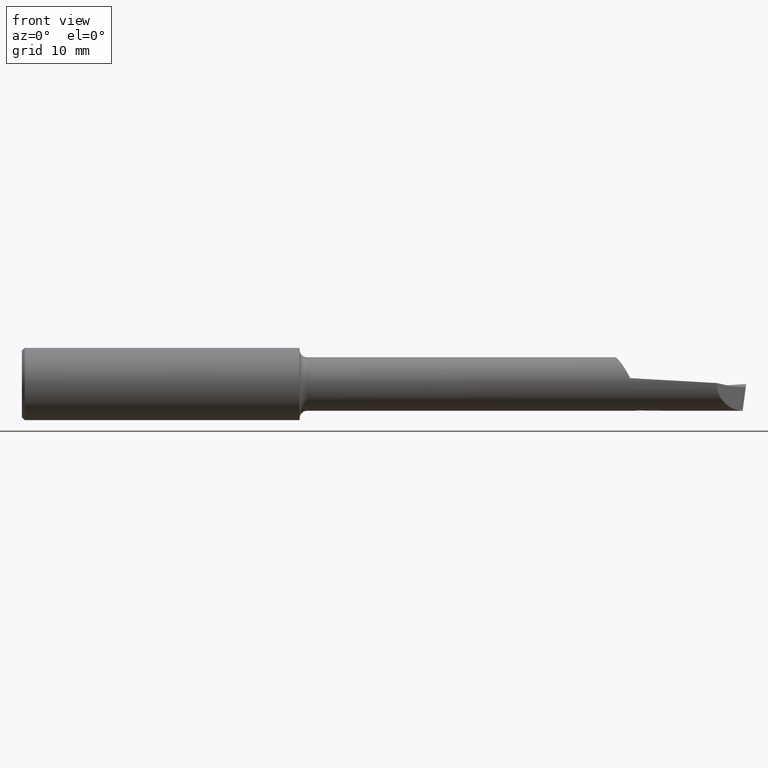
[diagram: clean part render]
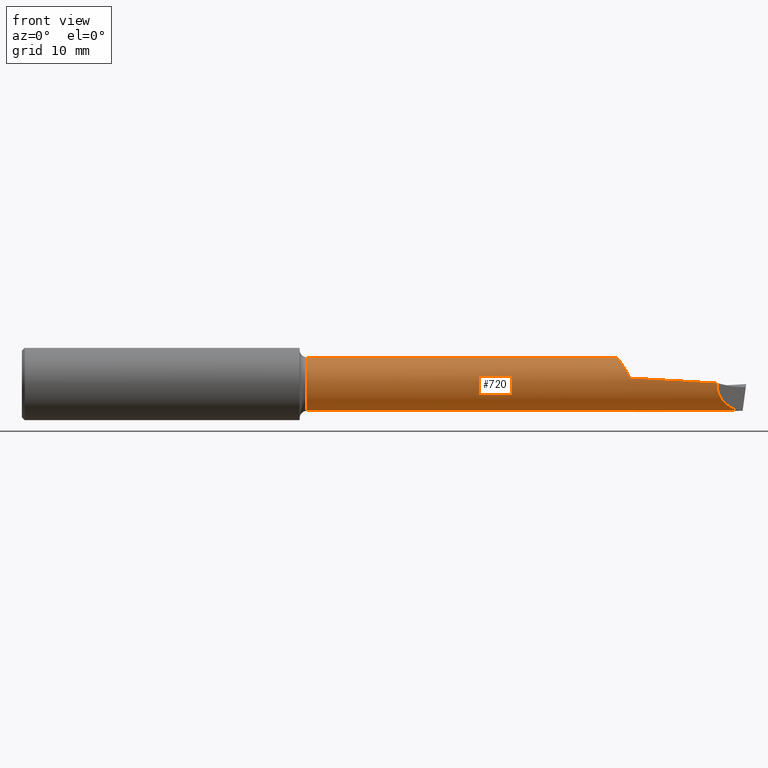
[diagram: same view with one face highlighted and labeled with its STEP entity id]
A machine part, front view. The second image highlights one B-rep face of the part: STEP entity #720.
In plain terms, the highlighted cylindrical surface (edge-blend (fillet) strip) has radius 2.3495 mm, axis along (-1, -0, -0).
Its self-contained STEP definition (entity closure, byte-faithful):
#5 = CARTESIAN_POINT ( 'NONE',  ( 0.000000000000000000, 0.000000000000000000, 0.000000000000000000 ) ) ;
#14 = CARTESIAN_POINT ( 'NONE',  ( 2.066208213237176849, -0.05356572789672628399, 0.07541362391561999556 ) ) ;
#15 = ORIENTED_EDGE ( 'NONE', *, *, #416, .F. ) ;
#19 = EDGE_CURVE ( 'NONE', #344, #624, #392, .T. ) ;
#21 = CARTESIAN_POINT ( 'NONE',  ( 2.064632393218944539, -0.05062565620870608518, 0.07748382293347118310 ) ) ;
#39 = ORIENTED_EDGE ( 'NONE', *, *, #503, .T. ) ;
#45 = DIRECTION ( 'NONE',  ( -1.000000000000000000, -0.000000000000000000, -0.000000000000000000 ) ) ;
#49 = CARTESIAN_POINT ( 'NONE',  ( 2.165123023610928676, -0.009485967679078336628, -0.09212995648928998249 ) ) ;
#59 = VECTOR ( 'NONE', #648, 39.37007874015748143 ) ;
#71 = AXIS2_PLACEMENT_3D ( 'NONE', #5, #671, #484 ) ;
#72 = VERTEX_POINT ( 'NONE', #631 ) ;
#78 = CARTESIAN_POINT ( 'NONE',  ( 2.092374781392565275, -0.08702720584656421787, 0.03461678013650090063 ) ) ;
#92 = CARTESIAN_POINT ( 'NONE',  ( 2.396847981000522321, -0.09435605656126438978, -0.05077108463250116360 ) ) ;
#93 = ORIENTED_EDGE ( 'NONE', *, *, #96, .T. ) ;
#96 = EDGE_CURVE ( 'NONE', #462, #140, #348, .T. ) ;
#99 = DIRECTION ( 'NONE',  ( 0.000000000000000000, 0.000000000000000000, -1.000000000000000000 ) ) ;
#126 = CARTESIAN_POINT ( 'NONE',  ( 2.066627336287861105, -0.05433633409741091269, 0.07485885989433642418 ) ) ;
#134 = CARTESIAN_POINT ( 'NONE',  ( 0.9838951354882120581, 0.000000000000000000, 0.09249999999999999889 ) ) ;
#140 = VERTEX_POINT ( 'NONE', #606 ) ;
#161 = LINE ( 'NONE', #585, #427 ) ;
#173 = CARTESIAN_POINT ( 'NONE',  ( 2.059668613704616735, -0.04013664932119041795, 0.08354322363455583822 ) ) ;
#175 = ORIENTED_EDGE ( 'NONE', *, *, #533, .F. ) ;
#178 = ORIENTED_EDGE ( 'NONE', *, *, #19, .F. ) ;
#181 = CARTESIAN_POINT ( 'NONE',  ( 2.487701070223761857, -0.003502967338024736733, -0.09243364766051763437 ) ) ;
#192 = CARTESIAN_POINT ( 'NONE',  ( 2.099985204774059699, -0.09024474448373197288, 0.02030113526544596175 ) ) ;
#204 = CARTESIAN_POINT ( 'NONE',  ( 2.398761991375082836, -0.09244204618670309737, 0.003273850457099852784 ) ) ;
#213 = DIRECTION ( 'NONE',  ( -1.000000000000000000, -0.000000000000000000, -0.000000000000000000 ) ) ;
#226 =( BOUNDED_CURVE ( )  B_SPLINE_CURVE ( 3, ( #204, #92, #276, #285 ),
 .UNSPECIFIED., .F., .F. ) 
 B_SPLINE_CURVE_WITH_KNOTS ( ( 4, 4 ),
 ( 6.247784935851605326, 7.816102659225365734 ),
 .UNSPECIFIED. ) 
 CURVE ( )  GEOMETRIC_REPRESENTATION_ITEM ( )  RATIONAL_B_SPLINE_CURVE ( ( 1.000000000000000000, 0.8053217043961202748, 0.8053217043961202748, 1.000000000000000000 ) ) 
 REPRESENTATION_ITEM ( '' )  );
#239 = CARTESIAN_POINT ( 'NONE',  ( 2.063224009766619460, -0.04778499748353275817, 0.07925519998079103012 ) ) ;
#250 = CARTESIAN_POINT ( 'NONE',  ( 2.052056960218470838, -0.01946374552352209131, 0.09108352192149239690 ) ) ;
#252 = EDGE_CURVE ( 'NONE', #342, #321, #597, .T. ) ;
#256 = CARTESIAN_POINT ( 'NONE',  ( 2.049452892340594357, -0.009316029406795841780, 0.09249996228234917683 ) ) ;
#266 = VERTEX_POINT ( 'NONE', #134 ) ;
#274 = CARTESIAN_POINT ( 'NONE',  ( 2.487723492803501912, 0.000000000000000000, -0.09249999999999992950 ) ) ;
#276 = CARTESIAN_POINT ( 'NONE',  ( 2.433661045213732610, -0.05754299234805447527, -0.09038568734144178385 ) ) ;
#278 = VERTEX_POINT ( 'NONE', #433 ) ;
#285 = CARTESIAN_POINT ( 'NONE',  ( 2.487701070223761857, -0.003502967338024736733, -0.09243364766051763437 ) ) ;
#296 = CARTESIAN_POINT ( 'NONE',  ( 0.9838951354882120581, 1.132798289211301828E-17, -0.09249999999999999889 ) ) ;
#300 = FACE_OUTER_BOUND ( 'NONE', #759, .T. ) ;
#302 = B_SPLINE_CURVE_WITH_KNOTS ( 'NONE', 3,
 ( #772, #49, #607, #719 ),
 .UNSPECIFIED., .F., .F.,
 ( 4, 4 ),
 ( 0.000000000000000000, 0.003456506819781745340 ),
 .UNSPECIFIED. ) ;
#307 = CARTESIAN_POINT ( 'NONE',  ( 2.047909686212890712, -1.554536630872900275E-06, 0.09251412615423500185 ) ) ;
#315 = CARTESIAN_POINT ( 'NONE',  ( 2.047909686212890712, -1.554536630872900275E-06, 0.09251412615423500185 ) ) ;
#316 = VERTEX_POINT ( 'NONE', #181 ) ;
#321 = VERTEX_POINT ( 'NONE', #315 ) ;
#342 = VERTEX_POINT ( 'NONE', #394 ) ;
#344 = VERTEX_POINT ( 'NONE', #589 ) ;
#348 = LINE ( 'NONE', #546, #59 ) ;
#368 = CARTESIAN_POINT ( 'NONE',  ( 2.066732102188527431, -0.05452740403586507634, 0.07471960758305627726 ) ) ;
#380 = CARTESIAN_POINT ( 'NONE',  ( 2.085890238348702574, -0.08094550312319337415, 0.04598559725705914092 ) ) ;
#383 = CARTESIAN_POINT ( 'NONE',  ( 2.071197751350748018, -0.06224497473912510986, 0.06871714438118392554 ) ) ;
#392 = LINE ( 'NONE', #577, #643 ) ;
#394 = CARTESIAN_POINT ( 'NONE',  ( 2.099985204774059699, -0.09024474448373197288, 0.02030113526544596175 ) ) ;
#396 = DIRECTION ( 'NONE',  ( -1.000000000000000000, -0.000000000000000000, -0.000000000000000000 ) ) ;
#398 = CARTESIAN_POINT ( 'NONE',  ( 2.255347661285690197, 2.667820306312757049E-18, -0.09249999999999990175 ) ) ;
#409 = EDGE_CURVE ( 'NONE', #344, #72, #440, .T. ) ;
#416 = EDGE_CURVE ( 'NONE', #278, #316, #226, .T. ) ;
#422 =( BOUNDED_CURVE ( )  B_SPLINE_CURVE ( 3, ( #647, #529, #756, #274 ),
 .UNSPECIFIED., .F., .F. ) 
 B_SPLINE_CURVE_WITH_KNOTS ( ( 4, 4 ),
 ( 0.03307364821532068899, 0.07095262296443420602 ),
 .UNSPECIFIED. ) 
 CURVE ( )  GEOMETRIC_REPRESENTATION_ITEM ( )  RATIONAL_B_SPLINE_CURVE ( ( 1.000000000000000000, 0.9998804355134170985, 0.9998804355134170985, 1.000000000000000000 ) ) 
 REPRESENTATION_ITEM ( '' )  );
#427 = VECTOR ( 'NONE', #650, 39.37007874015748143 ) ;
#433 = CARTESIAN_POINT ( 'NONE',  ( 2.398761991375082836, -0.09244204618670309737, 0.003273850457099852784 ) ) ;
#440 = CIRCLE ( 'NONE', #453, 0.09249999999999999889 ) ;
#443 = CARTESIAN_POINT ( 'NONE',  ( 2.067919854101653687, -0.05664095340334787676, 0.07313467737845072425 ) ) ;
#451 = ORIENTED_EDGE ( 'NONE', *, *, #554, .F. ) ;
#452 = ORIENTED_EDGE ( 'NONE', *, *, #591, .T. ) ;
#453 = AXIS2_PLACEMENT_3D ( 'NONE', #632, #213, #99 ) ;
#462 = VERTEX_POINT ( 'NONE', #398 ) ;
#472 = ORIENTED_EDGE ( 'NONE', *, *, #252, .T. ) ;
#484 = DIRECTION ( 'NONE',  ( 0.000000000000000000, 0.000000000000000000, 1.000000000000000000 ) ) ;
#485 = ORIENTED_EDGE ( 'NONE', *, *, #670, .T. ) ;
#501 = CIRCLE ( 'NONE', #567, 0.09249999999999999889 ) ;
#503 = EDGE_CURVE ( 'NONE', #321, #266, #161, .T. ) ;
#519 = CARTESIAN_POINT ( 'NONE',  ( 0.9838951354882120581, 0.000000000000000000, 0.000000000000000000 ) ) ;
#529 = CARTESIAN_POINT ( 'NONE',  ( 2.487705824692297618, -0.002335800290255904237, -0.09247787990872854968 ) ) ;
#533 = EDGE_CURVE ( 'NONE', #624, #266, #501, .T. ) ;
#546 = CARTESIAN_POINT ( 'NONE',  ( 2.120000000000000107, 0.000000000000000000, -0.09249999999999992950 ) ) ;
#550 = CYLINDRICAL_SURFACE ( 'NONE', #71, 0.09249999999999999889 ) ;
#554 = EDGE_CURVE ( 'NONE', #316, #140, #422, .T. ) ;
#556 = CARTESIAN_POINT ( 'NONE',  ( 2.057565407188880702, -0.03494212542111562597, 0.08581955901723035962 ) ) ;
#567 = AXIS2_PLACEMENT_3D ( 'NONE', #519, #45, #704 ) ;
#577 = CARTESIAN_POINT ( 'NONE',  ( 0.000000000000000000, 1.132798289211301828E-17, -0.09249999999999999889 ) ) ;
#585 = CARTESIAN_POINT ( 'NONE',  ( 0.000000000000000000, 0.000000000000000000, 0.09249999999999999889 ) ) ;
#589 = CARTESIAN_POINT ( 'NONE',  ( 2.120000000000000107, 1.132798289211301828E-17, -0.09249999999999999889 ) ) ;
#591 = EDGE_CURVE ( 'NONE', #72, #462, #302, .T. ) ;
#597 = B_SPLINE_CURVE_WITH_KNOTS ( 'NONE', 3,
 ( #192, #78, #380, #673, #383, #443, #680, #614, #368, #126, #718, #14, #21, #239, #173, #556, #250, #256, #307 ),
 .UNSPECIFIED., .F., .F.,
 ( 4, 2, 2, 1, 2, 2, 1, 1, 2, 2, 4 ),
 ( 0.000000000000000000, 0.2282707196234658453, 0.4565414392469316907, 0.4850752791998617641, 0.4993421991763267731, 0.5029089291704452735, 0.5064756591645637185, 0.5136091191528026068, 0.5706767990587137129, 0.6848121588705340379, 0.9130828784941764642 ),
 .UNSPECIFIED. ) ;
#601 = CARTESIAN_POINT ( 'NONE',  ( 2.099985204774059699, -0.09024474448373197288, 0.02030113526544596175 ) ) ;
#606 = CARTESIAN_POINT ( 'NONE',  ( 2.487723492803501912, 0.000000000000000000, -0.09249999999999992950 ) ) ;
#607 = CARTESIAN_POINT ( 'NONE',  ( 2.210237768285117532, -0.004780463194695070382, -0.09249999999999992950 ) ) ;
#614 = CARTESIAN_POINT ( 'NONE',  ( 2.066924862295450360, -0.05487806547671787716, 0.07446320367560997633 ) ) ;
#624 = VERTEX_POINT ( 'NONE', #296 ) ;
#631 = CARTESIAN_POINT ( 'NONE',  ( 2.120000000000000107, -0.01408598121421843381, -0.09142119630169293076 ) ) ;
#632 = CARTESIAN_POINT ( 'NONE',  ( 2.120000000000000107, 0.000000000000000000, 0.000000000000000000 ) ) ;
#643 = VECTOR ( 'NONE', #396, 39.37007874015748143 ) ;
#647 = CARTESIAN_POINT ( 'NONE',  ( 2.487701070223761857, -0.003502967338024736733, -0.09243364766051763437 ) ) ;
#648 = DIRECTION ( 'NONE',  ( 1.000000000000000000, -0.000000000000000000, -0.000000000000000000 ) ) ;
#650 = DIRECTION ( 'NONE',  ( -1.000000000000000000, -0.000000000000000000, -0.000000000000000000 ) ) ;
#655 = CARTESIAN_POINT ( 'NONE',  ( 2.398761991375082836, -0.09244204618670309737, 0.003273850457099852784 ) ) ;
#666 = ORIENTED_EDGE ( 'NONE', *, *, #409, .T. ) ;
#670 = EDGE_CURVE ( 'NONE', #278, #342, #710, .T. ) ;
#671 = DIRECTION ( 'NONE',  ( -1.000000000000000000, -0.000000000000000000, -0.000000000000000000 ) ) ;
#673 = CARTESIAN_POINT ( 'NONE',  ( 2.075301723327794168, -0.06855649903352785401, 0.06298298239382797703 ) ) ;
#680 = CARTESIAN_POINT ( 'NONE',  ( 2.067401435210660221, -0.05573592228519051034, 0.07382865587468590007 ) ) ;
#704 = DIRECTION ( 'NONE',  ( 0.000000000000000000, 0.000000000000000000, 1.000000000000000000 ) ) ;
#709 = CARTESIAN_POINT ( 'NONE',  ( 2.249186691865718846, -0.09213690762715869009, 0.01188989238826950595 ) ) ;
#710 =( BOUNDED_CURVE ( )  B_SPLINE_CURVE ( 2, ( #655, #709, #601 ),
 .UNSPECIFIED., .F., .F. ) 
 B_SPLINE_CURVE_WITH_KNOTS ( ( 3, 3 ),
 ( 0.1109587072986247119, 0.4360622139891842663 ),
 .UNSPECIFIED. ) 
 CURVE ( )  GEOMETRIC_REPRESENTATION_ITEM ( )  RATIONAL_B_SPLINE_CURVE ( ( 0.9734215292658962015, 0.9698259248218300543, 0.9746374891455963363 ) ) 
 REPRESENTATION_ITEM ( '' )  );
#718 = CARTESIAN_POINT ( 'NONE',  ( 2.066459374109549163, -0.05402831517415587065, 0.07508147086510376378 ) ) ;
#719 = CARTESIAN_POINT ( 'NONE',  ( 2.255347661285690197, 2.667820306312757049E-18, -0.09249999999999990175 ) ) ;
#720 = ADVANCED_FACE ( 'NONE', ( #300 ), #550, .T. ) ;
#756 = CARTESIAN_POINT ( 'NONE',  ( 2.487713299779299891, -0.001168004884056163609, -0.09250000000000002665 ) ) ;
#759 = EDGE_LOOP ( 'NONE', ( #178, #666, #452, #93, #451, #15, #485, #472, #39, #175 ) ) ;
#772 = CARTESIAN_POINT ( 'NONE',  ( 2.120000000000000107, -0.01408598121421843381, -0.09142119630169293076 ) ) ;